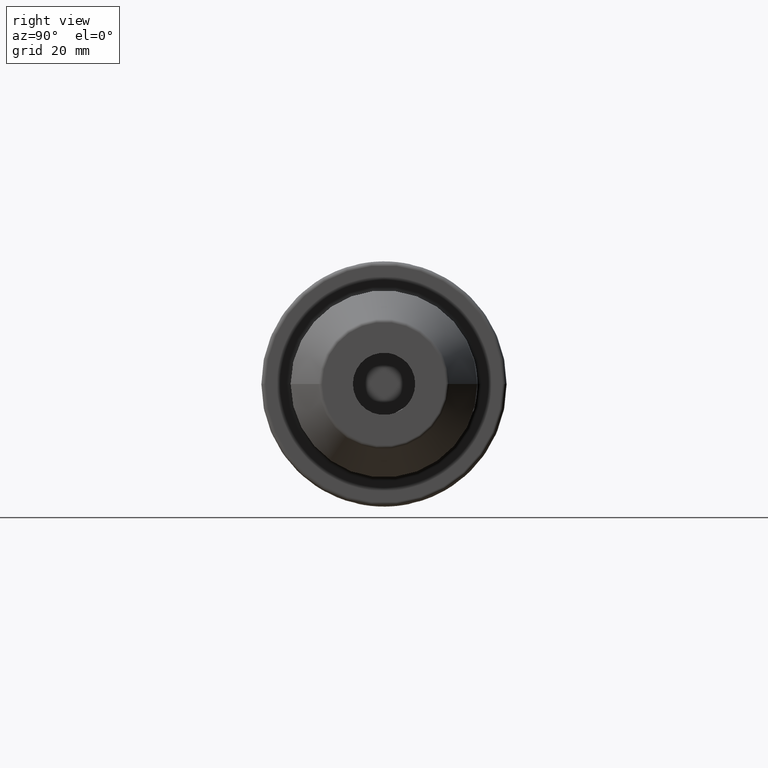
[diagram: clean part render]
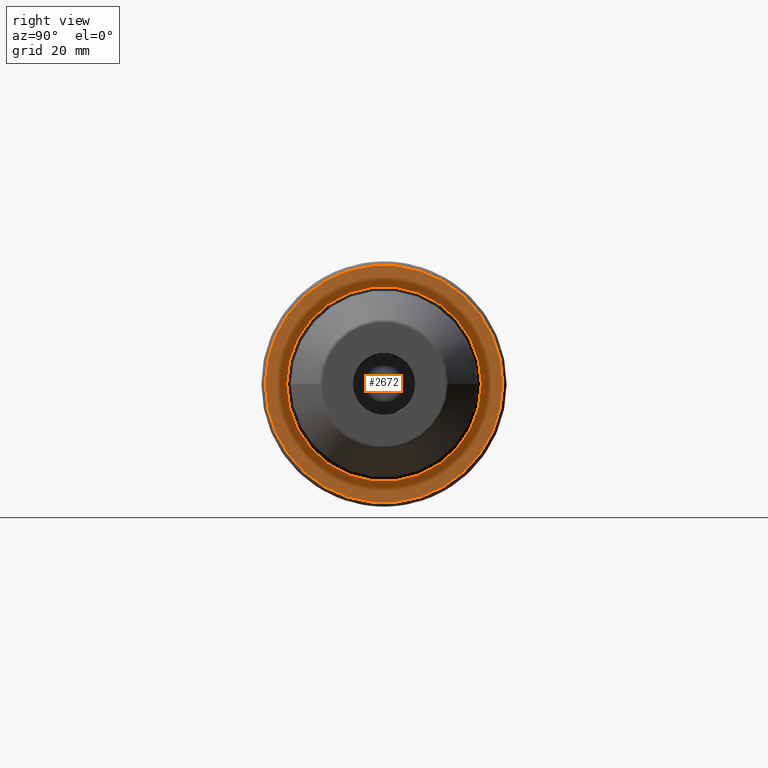
[diagram: same view with one face highlighted and labeled with its STEP entity id]
A machine part, right view. The second image highlights one B-rep face of the part: STEP entity #2672.
In plain terms, the highlighted planar face has unit normal (1, 0, 0).
Its self-contained STEP definition (entity closure, byte-faithful):
#816=CARTESIAN_POINT('',(2.7E1,0.E0,0.E0));
#817=DIRECTION('',(1.E0,0.E0,0.E0));
#818=DIRECTION('',(0.E0,1.E0,0.E0));
#819=AXIS2_PLACEMENT_3D('',#816,#817,#818);
#831=CARTESIAN_POINT('',(2.7E1,0.E0,0.E0));
#832=DIRECTION('',(-1.E0,0.E0,0.E0));
#833=DIRECTION('',(0.E0,1.E0,0.E0));
#834=AXIS2_PLACEMENT_3D('',#831,#832,#833);
#836=CARTESIAN_POINT('',(2.7E1,0.E0,0.E0));
#837=DIRECTION('',(1.E0,0.E0,0.E0));
#838=DIRECTION('',(0.E0,-1.E0,0.E0));
#839=AXIS2_PLACEMENT_3D('',#836,#837,#838);
#841=CARTESIAN_POINT('',(2.7E1,0.E0,0.E0));
#842=DIRECTION('',(1.E0,0.E0,0.E0));
#843=DIRECTION('',(0.E0,1.E0,0.E0));
#844=AXIS2_PLACEMENT_3D('',#841,#842,#843);
#1448=CARTESIAN_POINT('',(2.7E1,3.04875E1,0.E0));
#1449=VERTEX_POINT('',#1448);
#1450=CARTESIAN_POINT('',(2.7E1,-3.04875E1,0.E0));
#1451=VERTEX_POINT('',#1450);
#1549=CARTESIAN_POINT('',(2.7E1,-2.5E1,1.608122649677E-14));
#1550=CARTESIAN_POINT('',(2.7E1,2.5E1,0.E0));
#1551=VERTEX_POINT('',#1549);
#1552=VERTEX_POINT('',#1550);
#2657=CARTESIAN_POINT('',(2.7E1,0.E0,0.E0));
#2658=DIRECTION('',(1.E0,0.E0,0.E0));
#2659=DIRECTION('',(0.E0,-1.E0,0.E0));
#2660=AXIS2_PLACEMENT_3D('',#2657,#2658,#2659);
#2661=PLANE('',#2660);
#2662=ORIENTED_EDGE('',*,*,#2652,.T.);
#2663=ORIENTED_EDGE('',*,*,#2636,.F.);
#2664=EDGE_LOOP('',(#2662,#2663));
#2665=FACE_OUTER_BOUND('',#2664,.F.);
#2667=ORIENTED_EDGE('',*,*,#2666,.T.);
#2669=ORIENTED_EDGE('',*,*,#2668,.T.);
#2670=EDGE_LOOP('',(#2667,#2669));
#2671=FACE_BOUND('',#2670,.F.);
#2672=ADVANCED_FACE('',(#2665,#2671),#2661,.T.);
#820=CIRCLE('',#819,3.04875E1);
#835=CIRCLE('',#834,3.04875E1);
#840=CIRCLE('',#839,2.5E1);
#845=CIRCLE('',#844,2.5E1);
#2636=EDGE_CURVE('',#1449,#1451,#820,.T.);
#2652=EDGE_CURVE('',#1449,#1451,#835,.T.);
#2666=EDGE_CURVE('',#1551,#1552,#840,.T.);
#2668=EDGE_CURVE('',#1552,#1551,#845,.T.);